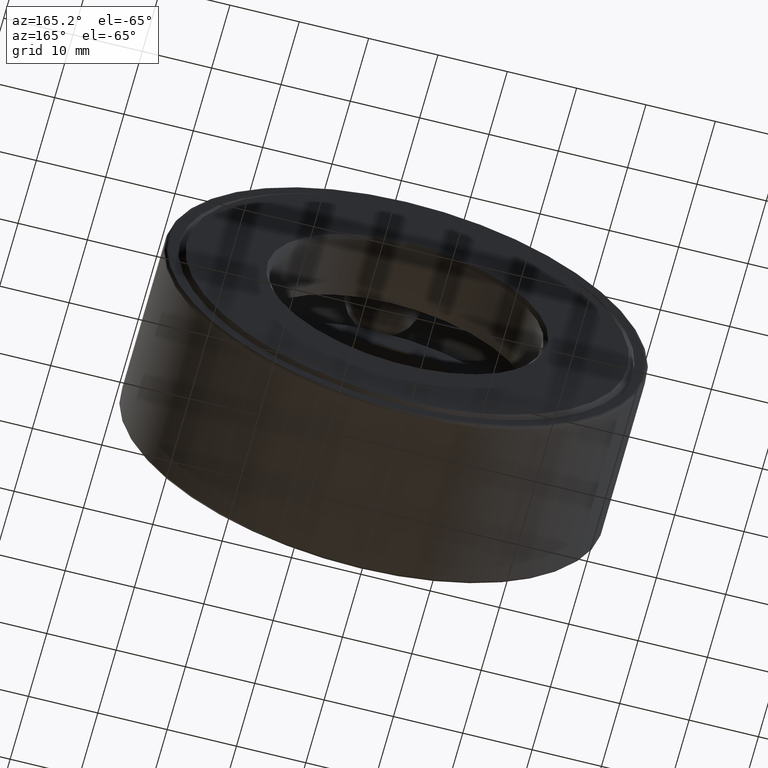
[diagram: clean part render]
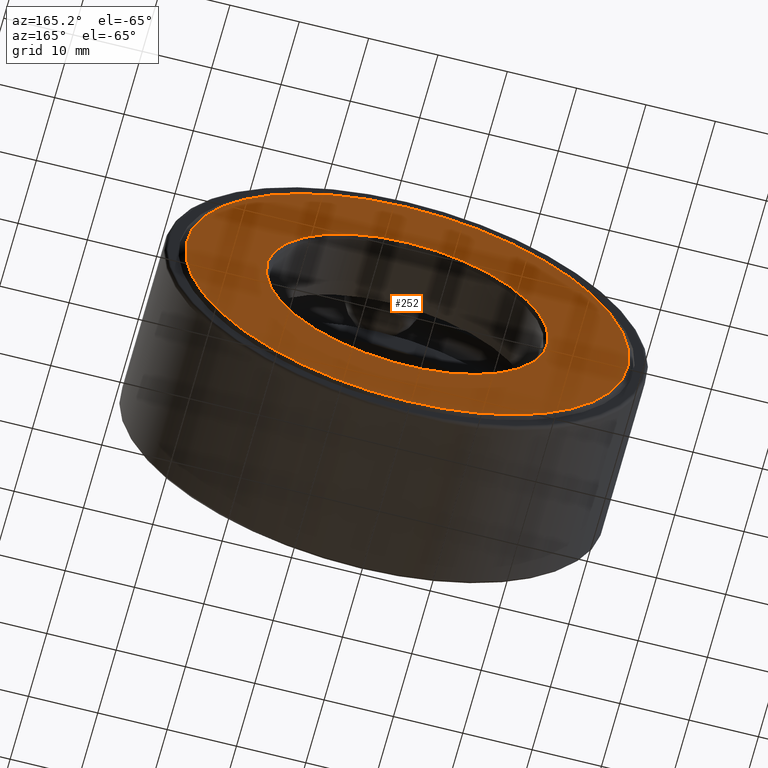
[diagram: same view with one face highlighted and labeled with its STEP entity id]
A machine part, auxiliary view. The second image highlights one B-rep face of the part: STEP entity #252.
In plain terms, the highlighted planar face has unit normal (-0, 1, 0).
Its self-contained STEP definition (entity closure, byte-faithful):
#81 = DIRECTION ( 'NONE',  ( -0.0000000000000000000, 1.000000000000000000, 0.0000000000000000000 ) ) ;
#83 = AXIS2_PLACEMENT_3D ( 'NONE', #257, #255, #412 ) ;
#108 = ORIENTED_EDGE ( 'NONE', *, *, #182, .F. ) ;
#169 = CARTESIAN_POINT ( 'NONE',  ( -2.977491001268954500E-016, 1.000000000000000000, 0.0000000000000000000 ) ) ;
#176 = DIRECTION ( 'NONE',  ( 0.0000000000000000000, 0.0000000000000000000, 1.000000000000000000 ) ) ;
#182 = EDGE_CURVE ( 'NONE', #349, #349, #591, .T. ) ;
#183 = CARTESIAN_POINT ( 'NONE',  ( 0.0000000000000000000, 1.000000000000000000, 1.260000000000000000 ) ) ;
#211 = ORIENTED_EDGE ( 'NONE', *, *, #527, .T. ) ;
#213 = PLANE ( 'NONE',  #232 ) ;
#214 = CIRCLE ( 'NONE', #356, 1.260000000000000000 ) ;
#232 = AXIS2_PLACEMENT_3D ( 'NONE', #169, #81, #453 ) ;
#252 = ADVANCED_FACE ( 'NONE', ( #528, #475 ), #213, .T. ) ;
#255 = DIRECTION ( 'NONE',  ( -0.0000000000000000000, 1.000000000000000000, -0.0000000000000000000 ) ) ;
#257 = CARTESIAN_POINT ( 'NONE',  ( 0.0000000000000000000, 1.000000000000000200, 0.0000000000000000000 ) ) ;
#265 = DIRECTION ( 'NONE',  ( -0.0000000000000000000, 1.000000000000000000, -0.0000000000000000000 ) ) ;
#349 = VERTEX_POINT ( 'NONE', #388 ) ;
#356 = AXIS2_PLACEMENT_3D ( 'NONE', #470, #265, #176 ) ;
#388 = CARTESIAN_POINT ( 'NONE',  ( 0.0000000000000000000, 1.000000000000000200, 0.8012500000000002400 ) ) ;
#389 = VERTEX_POINT ( 'NONE', #183 ) ;
#412 = DIRECTION ( 'NONE',  ( 0.0000000000000000000, 0.0000000000000000000, 1.000000000000000000 ) ) ;
#453 = DIRECTION ( 'NONE',  ( 0.0000000000000000000, 0.0000000000000000000, 1.000000000000000000 ) ) ;
#470 = CARTESIAN_POINT ( 'NONE',  ( 0.0000000000000000000, 1.000000000000000000, 0.0000000000000000000 ) ) ;
#475 = FACE_BOUND ( 'NONE', #578, .T. ) ;
#527 = EDGE_CURVE ( 'NONE', #389, #389, #214, .T. ) ;
#528 = FACE_OUTER_BOUND ( 'NONE', #563, .T. ) ;
#563 = EDGE_LOOP ( 'NONE', ( #211 ) ) ;
#578 = EDGE_LOOP ( 'NONE', ( #108 ) ) ;
#591 = CIRCLE ( 'NONE', #83, 0.8012500000000002400 ) ;